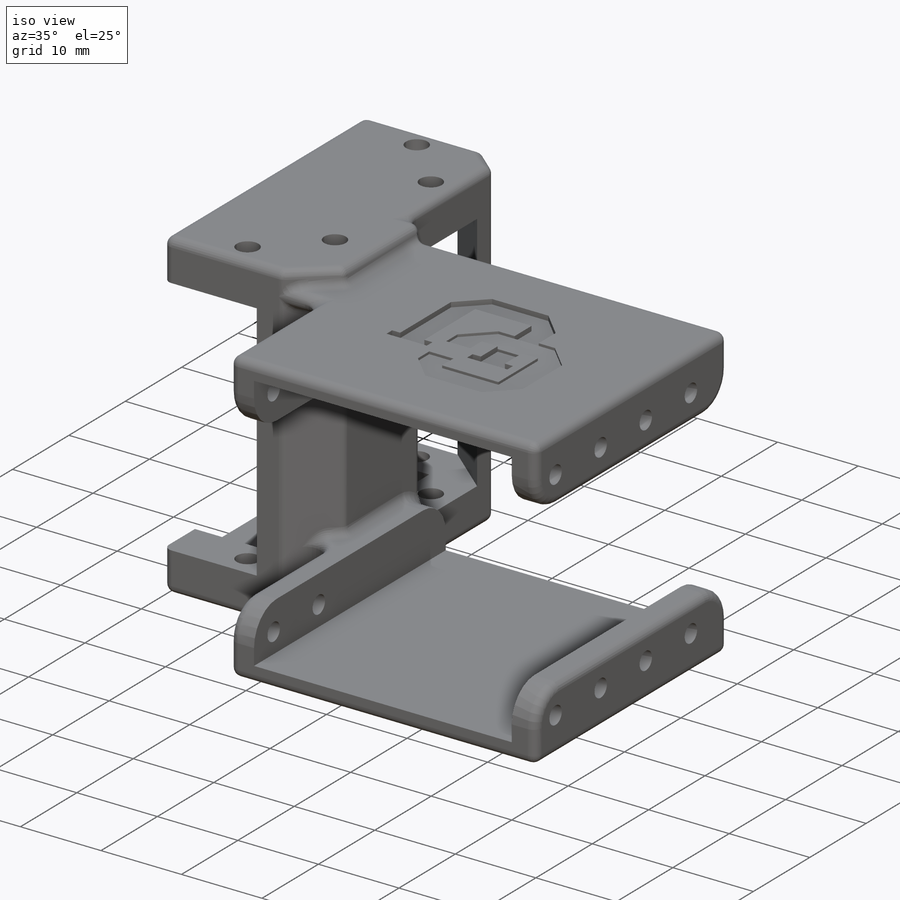
[diagram: iso view]
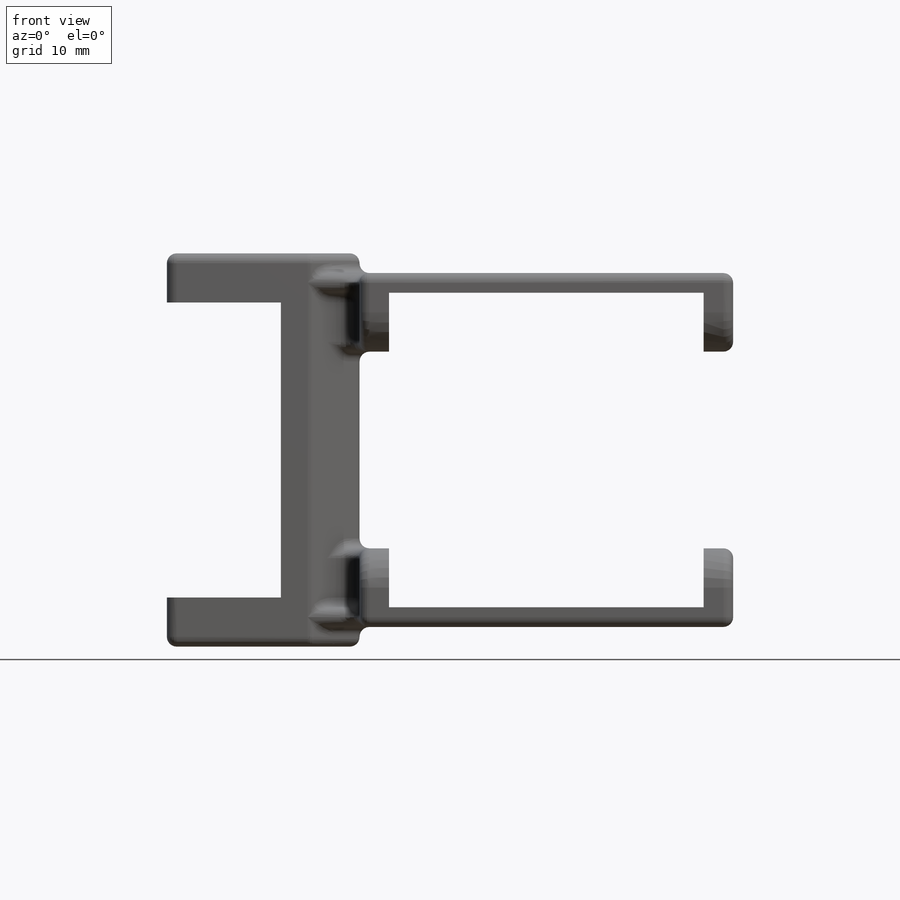
[diagram: front view]
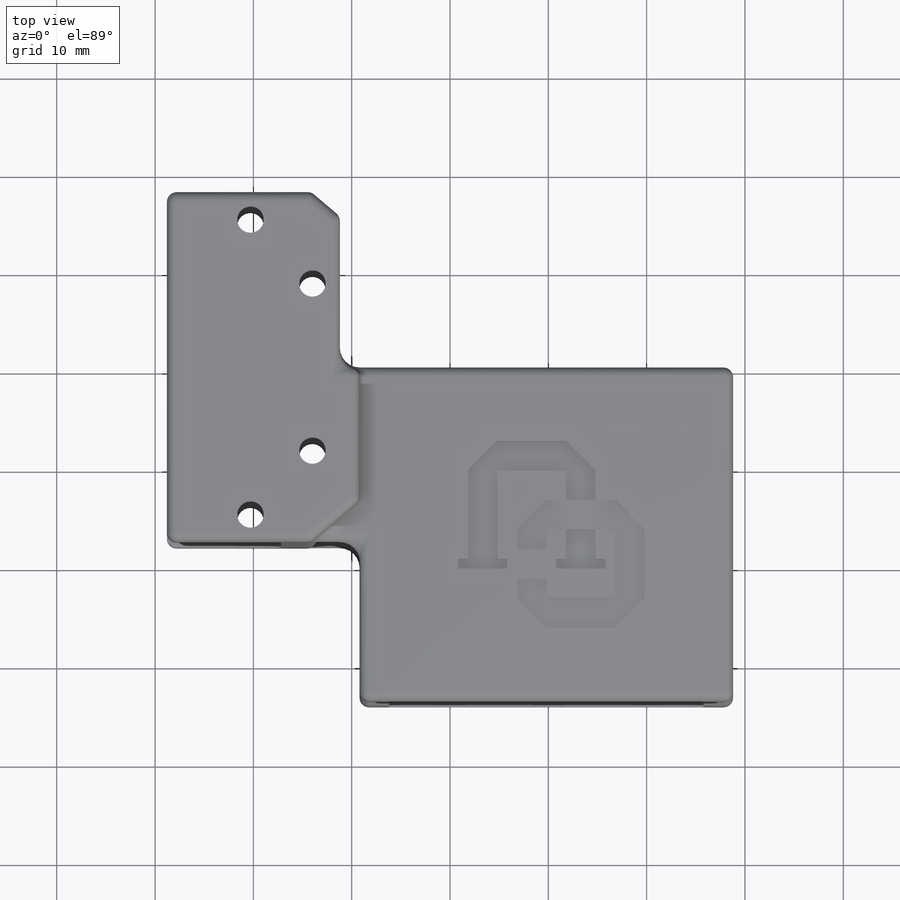
[diagram: top view]
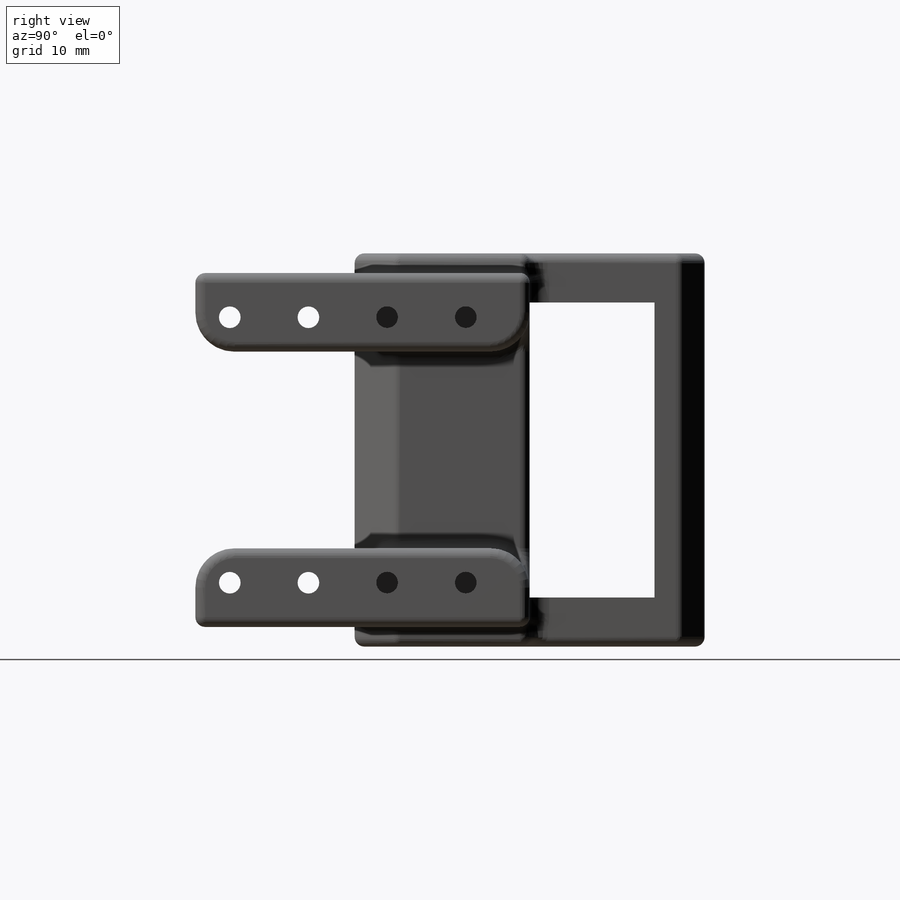
[diagram: right view]
SOLIDWORKS PART (.sldprt)
format: sldprt  version: not decoded by parser v0  size: 1,122,304 bytes
history: native  units: mm
features: sketch x11, fillet x10, cut_extrude x6, extrude x5, plane x4, mirror x2, move_body x2, material x1, chamfer x1, pattern_circular x1 (+11 scaffold rows collapsed)
feature tree (54):
  scaffold x11  (default folders/planes/origin — collapsed)
  material  "Material <not specified>"
  sketch  "Sketch1"  dims[D1=17.8mm D2=17.6mm]
  extrude  "Boss-Extrude1"  Depth=5mm
  sketch  "Sketch2"  dims[D1=2.7mm D2=17.0mm D3=2.8mm D4=2.8mm D5=9.1mm]
  cut_extrude  "Cut-Extrude1"  [1 undecoded]
  chamfer  "Chamfer1"  Distance=5.1mm
  sketch  "Sketch3"  dims[D1=2.75mm D2=12.2mm]
  cut_extrude  "Cut-Extrude2"  Depth=12mm
  sketch  "Sketch4"  dims[c1.D1=~2.475119mm c1.D2=2.0mm c2.D1=2.0mm]
  extrude  "Boss-Extrude2"  Depth=20mm
  plane  "Plane1"  Offset=15mm
  mirror  "Mirror1"
  sketch  "Sketch5"  dims[c1.D1=2.0mm c1.D2=12.0mm c2.D1=2.0mm c2.D2=2.0mm]
  extrude  "Boss-Extrude3"  Depth=20mm
  plane  "Plane2"  Offset=4mm
  sketch  "Sketch7"  dims[D1=3.0mm D2=35.0mm D3=34.0mm]
  extrude  "Boss-Extrude4"  Depth=2mm
  sketch  "Sketch9"  dims[D1=3.0mm]
  extrude  "Boss-Extrude5"  Depth=8mm
  sketch  "Sketch10"  dims[c1.D1=2.2mm c1.D2=2.2mm c1.D3=2.2mm c2.D2=3.5mm c2.D3=3.5mm c2.D4=8.0mm]
  cut_extrude  "Cut-Extrude3"  [1 undecoded]
  sketch  "Sketch11"
  cut_extrude  "Cut-Extrude4"  [1 undecoded]
  fillet  "Fillet1"  Radius=1mm
  fillet  "Fillet2"  Radius=2mm
  fillet  "Fillet3"  Radius=0.8mm
  fillet  "Fillet4"  Radius=2mm
  fillet  "Fillet5"  Radius=2mm
  fillet  "Fillet6"  Radius=4mm
  fillet  "Fillet7"  Radius=1mm
  mirror  "Mirror5"
  fillet  "Fillet8"  Radius=1mm
  fillet  "Fillet9"  Radius=1mm
  fillet  "Fillet10"  Radius=1mm
  move_body  "Body-Move/Copy1"
  sketch  "Sketch18"  dims[c1.D1=~4.370282mm c2.D1=45.0deg c2.D2=0.5mm c2.D3=3.0mm c3.D2=3.0mm c3.D4=13.0mm c3.D5=8.0mm c3.D6=6.5mm]
  cut_extrude  "Cut-Extrude7"  Depth=0.3mm
  sketch  "Sketch20"  dims[c1.D1=1.0mm c1.D2=~6.486808mm c2.D2=45.0deg c2.D3=1.0mm c2.D4=2.0mm c2.D5=3.0mm]
  cut_extrude  "Cut-Extrude8"  Depth=0.6mm
  plane  "Plane3"
  plane  "Plane4"
  move_body  "Axis2"
  pattern_circular  "CirPattern1"  Count=2 Angle=9.473684deg
decode coverage: 30 of 38 modeling features carry decoded parameters
note: ~ marks probable driven/reference dimensions
note: 3 parameter values undecoded
summary: no parameter record found for 3 features
note: suppression state not decoded; provenance and decode notes live in map.json
